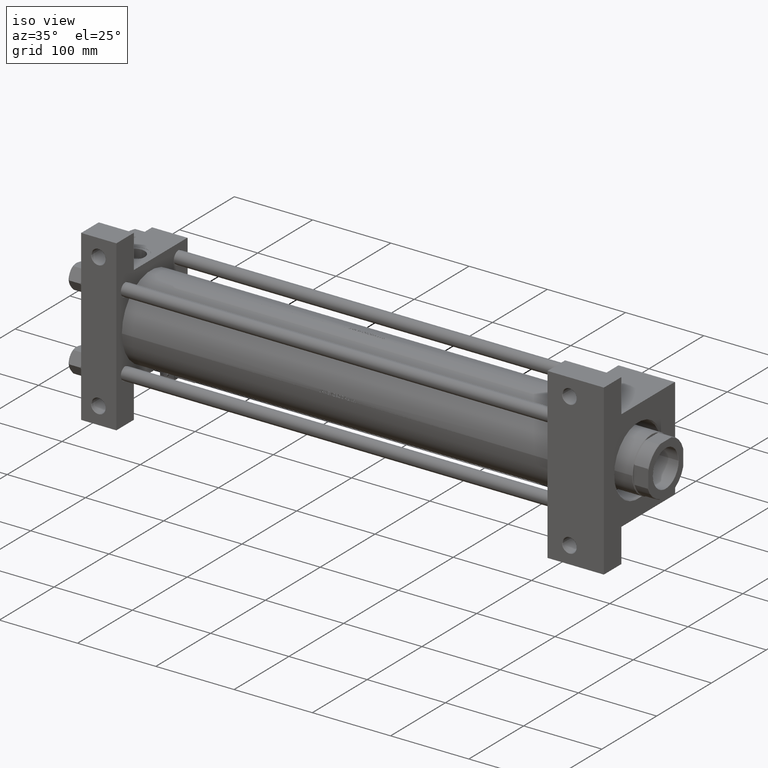
[diagram: clean part render]
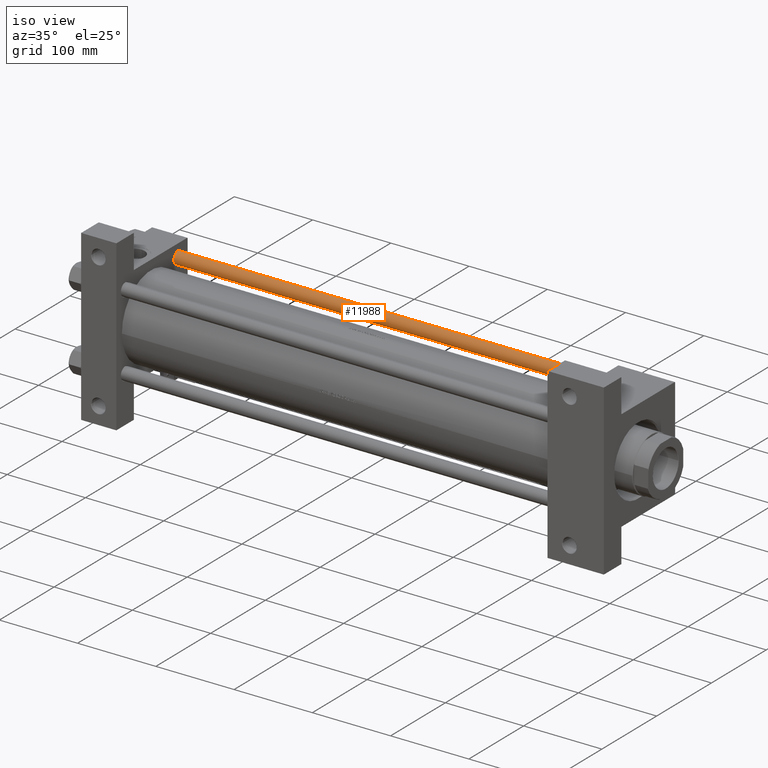
[diagram: same view with one face highlighted and labeled with its STEP entity id]
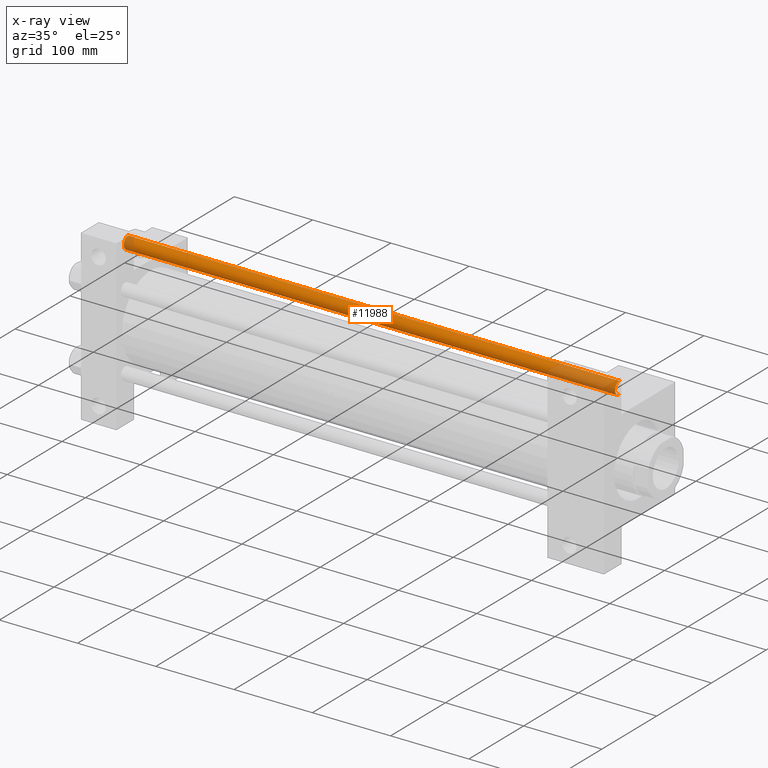
[diagram: x-ray of the same camera — body ghosted, the highlighted face saturated]
A machine part, iso view. The second image highlights one B-rep face of the part: STEP entity #11988.
The next image is the same camera in x-ray: the body ghosted, the highlighted face saturated — about 15% of this face is hidden behind the body in this view.
In plain terms, the highlighted cylindrical surface (edge-blend (fillet) strip) has radius 8 mm, axis along (-1, -0, -0).
Its self-contained STEP definition (entity closure, byte-faithful):
#1787 = DIRECTION ( 'NONE',  ( -1.000000000000000000, 0.000000000000000000, 0.000000000000000000 ) ) ;
#2028 = CIRCLE ( 'NONE', #12986, 8.000000000000000000 ) ;
#2330 = LINE ( 'NONE', #46745, #26298 ) ;
#2589 = CYLINDRICAL_SURFACE ( 'NONE', #20910, 8.000000000000000000 ) ;
#3409 = EDGE_CURVE ( 'NONE', #12775, #22850, #2028, .T. ) ;
#5935 = EDGE_CURVE ( 'NONE', #43552, #14347, #33370, .T. ) ;
#6806 = ORIENTED_EDGE ( 'NONE', *, *, #3409, .T. ) ;
#7248 = CARTESIAN_POINT ( 'NONE',  ( -8.000000000000000000, 0.000000000000000000, 628.5000000000001137 ) ) ;
#7482 = CARTESIAN_POINT ( 'NONE',  ( 0.000000000000000000, 0.000000000000000000, 0.5000000000000559552 ) ) ;
#8466 = CARTESIAN_POINT ( 'NONE',  ( 8.000000000000000000, 9.797174393178825657E-16, 628.5000000000001137 ) ) ;
#9441 = CARTESIAN_POINT ( 'NONE',  ( 0.000000000000000000, 0.000000000000000000, 628.5000000000001137 ) ) ;
#11988 = ADVANCED_FACE ( 'NONE', ( #21594 ), #2589, .T. ) ;
#12775 = VERTEX_POINT ( 'NONE', #8466 ) ;
#12986 = AXIS2_PLACEMENT_3D ( 'NONE', #9441, #50195, #46223 ) ;
#14347 = VERTEX_POINT ( 'NONE', #26854 ) ;
#15684 = DIRECTION ( 'NONE',  ( -0.000000000000000000, -0.000000000000000000, 1.000000000000000000 ) ) ;
#17852 = ORIENTED_EDGE ( 'NONE', *, *, #27419, .T. ) ;
#20665 = CARTESIAN_POINT ( 'NONE',  ( -8.000000000000000000, 0.000000000000000000, 0.5000000000000559552 ) ) ;
#20910 = AXIS2_PLACEMENT_3D ( 'NONE', #42236, #21864, #1787 ) ;
#21594 = FACE_OUTER_BOUND ( 'NONE', #42133, .T. ) ;
#21864 = DIRECTION ( 'NONE',  ( -0.000000000000000000, -0.000000000000000000, -1.000000000000000000 ) ) ;
#22850 = VERTEX_POINT ( 'NONE', #7248 ) ;
#25024 = LINE ( 'NONE', #33226, #36574 ) ;
#26298 = VECTOR ( 'NONE', #35091, 1000.000000000000000 ) ;
#26571 = ORIENTED_EDGE ( 'NONE', *, *, #35514, .F. ) ;
#26854 = CARTESIAN_POINT ( 'NONE',  ( 8.000000000000000000, 9.797174393178825657E-16, 0.5000000000000559552 ) ) ;
#27419 = EDGE_CURVE ( 'NONE', #22850, #43552, #2330, .T. ) ;
#33226 = CARTESIAN_POINT ( 'NONE',  ( 8.000000000000000000, 9.797174393178825657E-16, 629.0000000000000000 ) ) ;
#33370 = CIRCLE ( 'NONE', #35044, 8.000000000000000000 ) ;
#35044 = AXIS2_PLACEMENT_3D ( 'NONE', #7482, #15684, #47968 ) ;
#35091 = DIRECTION ( 'NONE',  ( -0.000000000000000000, -0.000000000000000000, -1.000000000000000000 ) ) ;
#35514 = EDGE_CURVE ( 'NONE', #12775, #14347, #25024, .T. ) ;
#36256 = ORIENTED_EDGE ( 'NONE', *, *, #5935, .T. ) ;
#36574 = VECTOR ( 'NONE', #44623, 1000.000000000000000 ) ;
#42133 = EDGE_LOOP ( 'NONE', ( #26571, #6806, #17852, #36256 ) ) ;
#42236 = CARTESIAN_POINT ( 'NONE',  ( 0.000000000000000000, 0.000000000000000000, 629.0000000000000000 ) ) ;
#43552 = VERTEX_POINT ( 'NONE', #20665 ) ;
#44623 = DIRECTION ( 'NONE',  ( -0.000000000000000000, -0.000000000000000000, -1.000000000000000000 ) ) ;
#46223 = DIRECTION ( 'NONE',  ( 1.000000000000000000, 0.000000000000000000, 0.000000000000000000 ) ) ;
#46745 = CARTESIAN_POINT ( 'NONE',  ( -8.000000000000000000, 0.000000000000000000, 629.0000000000000000 ) ) ;
#47968 = DIRECTION ( 'NONE',  ( 1.000000000000000000, 0.000000000000000000, 0.000000000000000000 ) ) ;
#50195 = DIRECTION ( 'NONE',  ( 0.000000000000000000, 0.000000000000000000, -1.000000000000000000 ) ) ;